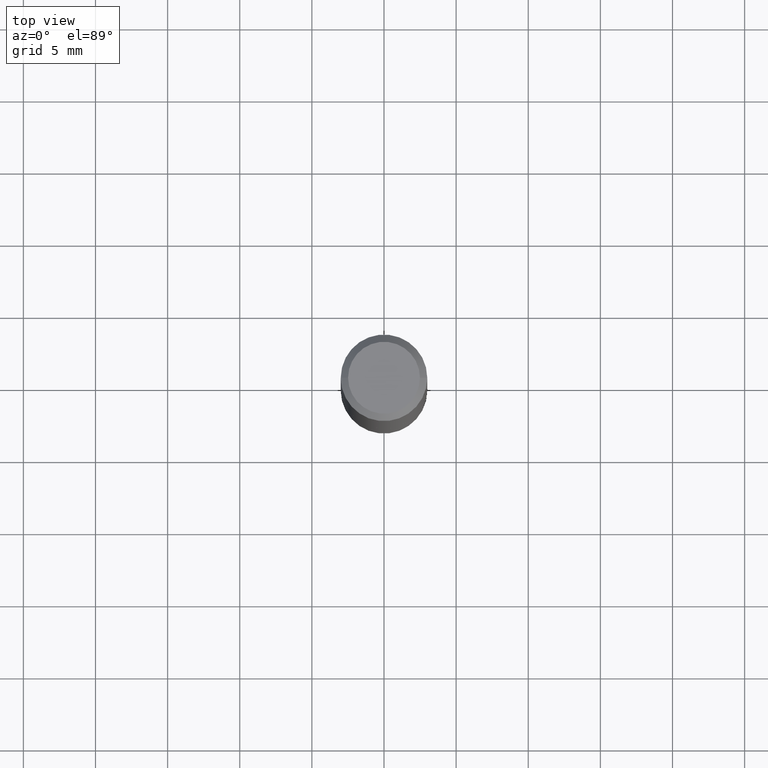
[diagram: clean part render]
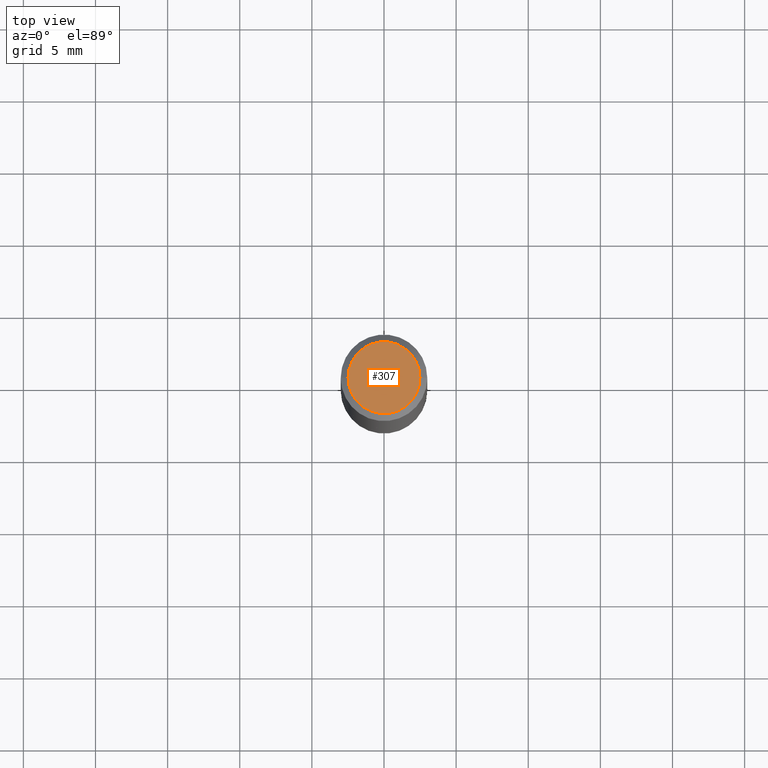
[diagram: same view with one face highlighted and labeled with its STEP entity id]
A machine part, top view. The second image highlights one B-rep face of the part: STEP entity #307.
In plain terms, the highlighted planar face has unit normal (0, -0, -1).
Its self-contained STEP definition (entity closure, byte-faithful):
#16 = AXIS2_PLACEMENT_3D ( 'NONE', #106, #43, #160 ) ;
#43 = DIRECTION ( 'NONE',  ( -2.445468806185136597E-29, 3.491481338843145583E-15, 1.000000000000000000 ) ) ;
#46 = DIRECTION ( 'NONE',  ( 2.438088387897960049E-29, -3.491481338843145188E-15, -1.000000000000000000 ) ) ;
#53 = EDGE_LOOP ( 'NONE', ( #203, #149 ) ) ;
#71 = CARTESIAN_POINT ( 'NONE',  ( 6.850286386810215676E-16, 0.09809999999999984011, -3.403800630954618031E-16 ) ) ;
#106 = CARTESIAN_POINT ( 'NONE',  ( -1.043851414335219820E-46, 1.490343170380447200E-32, 4.268512490100411279E-18 ) ) ;
#111 = DIRECTION ( 'NONE',  ( 1.000000000000000000, -6.982962677686266711E-15, 4.876195163481339890E-29 ) ) ;
#149 = ORIENTED_EDGE ( 'NONE', *, *, #251, .T. ) ;
#160 = DIRECTION ( 'NONE',  ( 1.000000000000000000, -6.982962677686266711E-15, 4.876195163481339890E-29 ) ) ;
#161 = AXIS2_PLACEMENT_3D ( 'NONE', #204, #282, #111 ) ;
#163 = DIRECTION ( 'NONE',  ( -1.000000000000000000, 6.982962677686265922E-15, -4.876176775795935793E-29 ) ) ;
#178 = CIRCLE ( 'NONE', #16, 0.09809999999999984011 ) ;
#179 = VERTEX_POINT ( 'NONE', #223 ) ;
#201 = AXIS2_PLACEMENT_3D ( 'NONE', #71, #46, #163 ) ;
#203 = ORIENTED_EDGE ( 'NONE', *, *, #349, .T. ) ;
#204 = CARTESIAN_POINT ( 'NONE',  ( -1.043851414335219820E-46, 1.490343170380447200E-32, 4.268512490100411279E-18 ) ) ;
#208 = VERTEX_POINT ( 'NONE', #361 ) ;
#219 = PLANE ( 'NONE',  #201 ) ;
#223 = CARTESIAN_POINT ( 'NONE',  ( -0.09809999999999984011, 7.199434520694527237E-16, 4.268512490095498617E-18 ) ) ;
#251 = EDGE_CURVE ( 'NONE', #208, #179, #178, .T. ) ;
#275 = FACE_OUTER_BOUND ( 'NONE', #53, .T. ) ;
#278 = CIRCLE ( 'NONE', #161, 0.09809999999999984011 ) ;
#282 = DIRECTION ( 'NONE',  ( -2.445468806185136597E-29, 3.491481338843145583E-15, 1.000000000000000000 ) ) ;
#307 = ADVANCED_FACE ( 'NONE', ( #275 ), #219, .F. ) ;
#349 = EDGE_CURVE ( 'NONE', #179, #208, #278, .T. ) ;
#361 = CARTESIAN_POINT ( 'NONE',  ( 0.09809999999999984011, -7.765346469475328709E-16, 4.268512490105521927E-18 ) ) ;